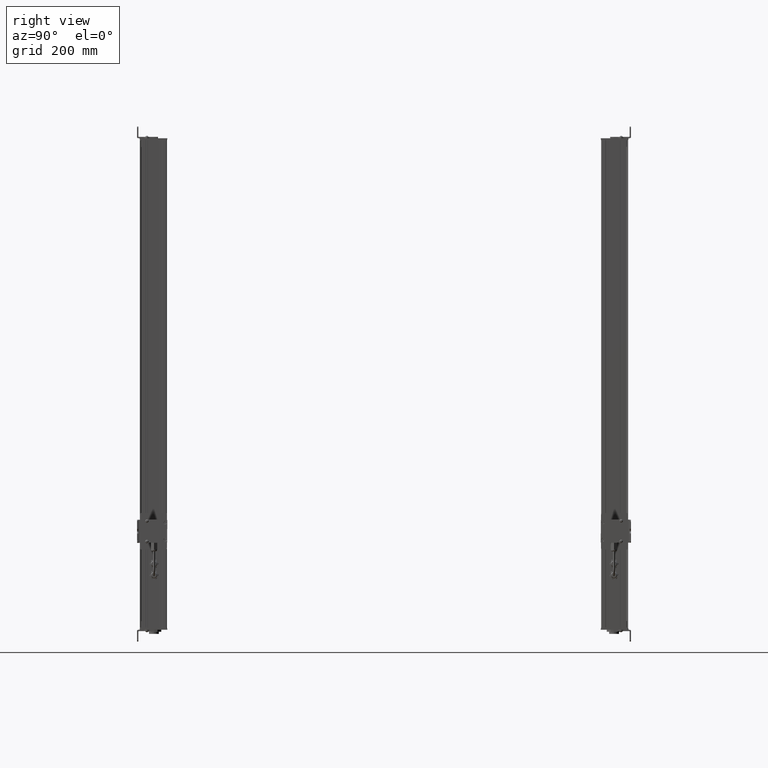
[diagram: clean part render]
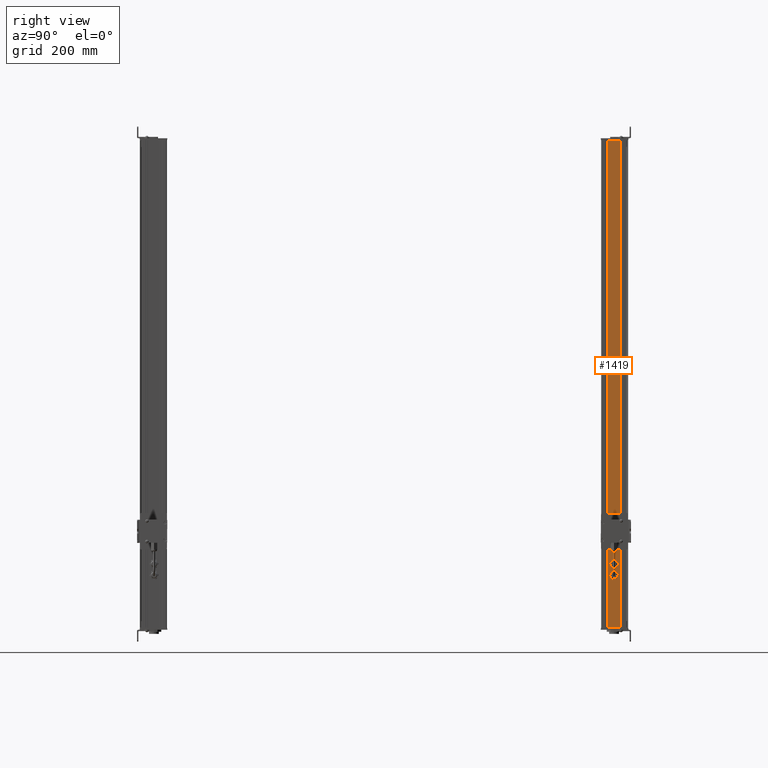
[diagram: same view with one face highlighted and labeled with its STEP entity id]
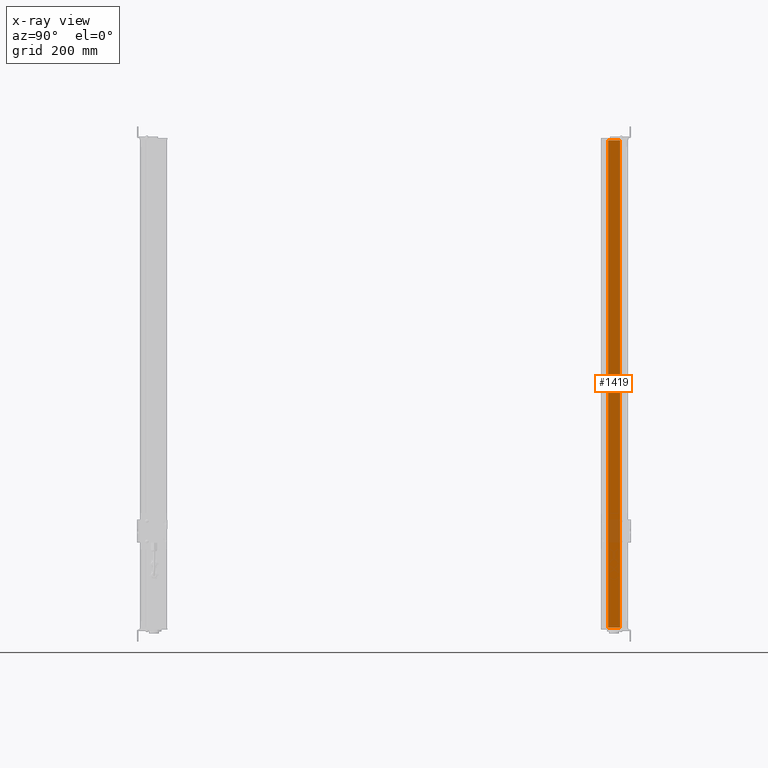
[diagram: x-ray of the same camera — body ghosted, the highlighted face saturated]
A machine part, right view. The second image highlights one B-rep face of the part: STEP entity #1419.
The next image is the same camera in x-ray: the body ghosted, the highlighted face saturated — about 5% of this face is hidden behind the body in this view.
In plain terms, the highlighted planar face has unit normal (1, 0, 0).
Its self-contained STEP definition (entity closure, byte-faithful):
#660=CARTESIAN_POINT('Axis2P3D Location',(613.195548937,133.067790275,0.)) ;
#1372=CARTESIAN_POINT('Vertex',(613.195548938,166.010394004,0.)) ;
#1375=CARTESIAN_POINT('Line Origine',(613.195548938,166.010394004,561.)) ;
#1379=CARTESIAN_POINT('Vertex',(613.195548938,166.010394004,1122.)) ;
#1394=CARTESIAN_POINT('Line Origine',(613.195548937,152.38909214,0.)) ;
#1398=CARTESIAN_POINT('Vertex',(613.195548937,138.767790274,0.)) ;
#1401=CARTESIAN_POINT('Line Origine',(613.195548937,138.767790274,561.)) ;
#1405=CARTESIAN_POINT('Vertex',(613.195548937,138.767790274,1122.)) ;
#1408=CARTESIAN_POINT('Line Origine',(613.195548937,152.38909214,1122.)) ;
#661=DIRECTION('Axis2P3D Direction',(-1.,0.,0.)) ;
#662=DIRECTION('Axis2P3D XDirection',(0.,-1.,0.)) ;
#1376=DIRECTION('Vector Direction',(0.,0.,1.)) ;
#1395=DIRECTION('Vector Direction',(0.,-1.,0.)) ;
#1402=DIRECTION('Vector Direction',(0.,0.,1.)) ;
#1409=DIRECTION('Vector Direction',(0.,-1.,0.)) ;
#663=AXIS2_PLACEMENT_3D('Plane Axis2P3D',#660,#661,#662) ;
#1414=ORIENTED_EDGE('',*,*,#1381,.F.) ;
#1415=ORIENTED_EDGE('',*,*,#1400,.T.) ;
#1416=ORIENTED_EDGE('',*,*,#1407,.T.) ;
#1417=ORIENTED_EDGE('',*,*,#1412,.F.) ;
#1377=VECTOR('Line Direction',#1376,1.) ;
#1396=VECTOR('Line Direction',#1395,1.) ;
#1403=VECTOR('Line Direction',#1402,1.) ;
#1410=VECTOR('Line Direction',#1409,1.) ;
#1419=ADVANCED_FACE('Body.2',(#1418),#664,.T.) ;
#1381=EDGE_CURVE('',#1373,#1380,#1378,.T.) ;
#1400=EDGE_CURVE('',#1373,#1399,#1397,.T.) ;
#1407=EDGE_CURVE('',#1399,#1406,#1404,.T.) ;
#1412=EDGE_CURVE('',#1380,#1406,#1411,.T.) ;
#1413=EDGE_LOOP('',(#1414,#1415,#1416,#1417)) ;
#1418=FACE_OUTER_BOUND('',#1413,.T.) ;
#1378=LINE('Line',#1375,#1377) ;
#1397=LINE('Line',#1394,#1396) ;
#1404=LINE('Line',#1401,#1403) ;
#1411=LINE('Line',#1408,#1410) ;
#664=PLANE('Plane',#663) ;
#1373=VERTEX_POINT('',#1372) ;
#1380=VERTEX_POINT('',#1379) ;
#1399=VERTEX_POINT('',#1398) ;
#1406=VERTEX_POINT('',#1405) ;